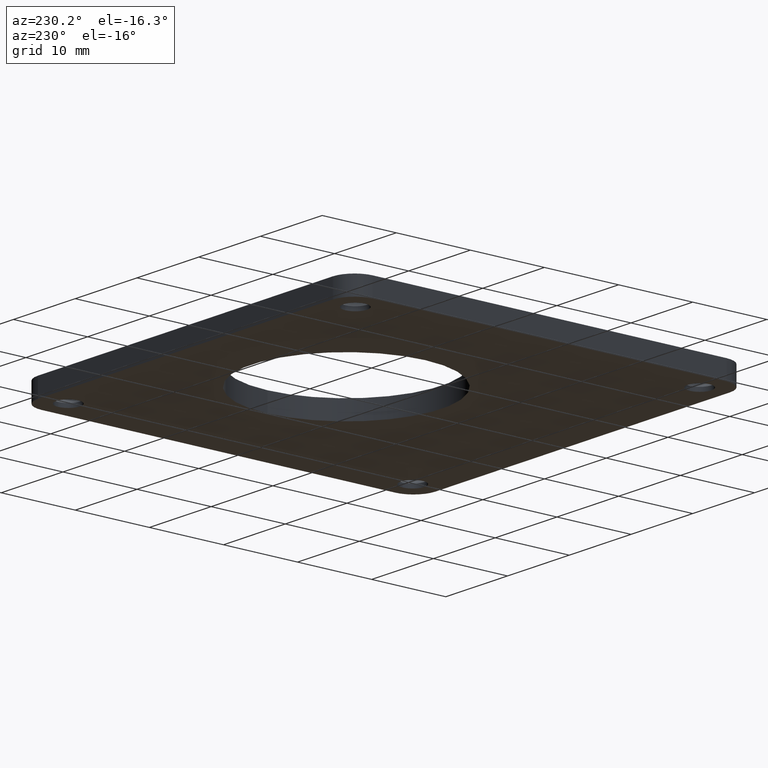
[diagram: clean part render]
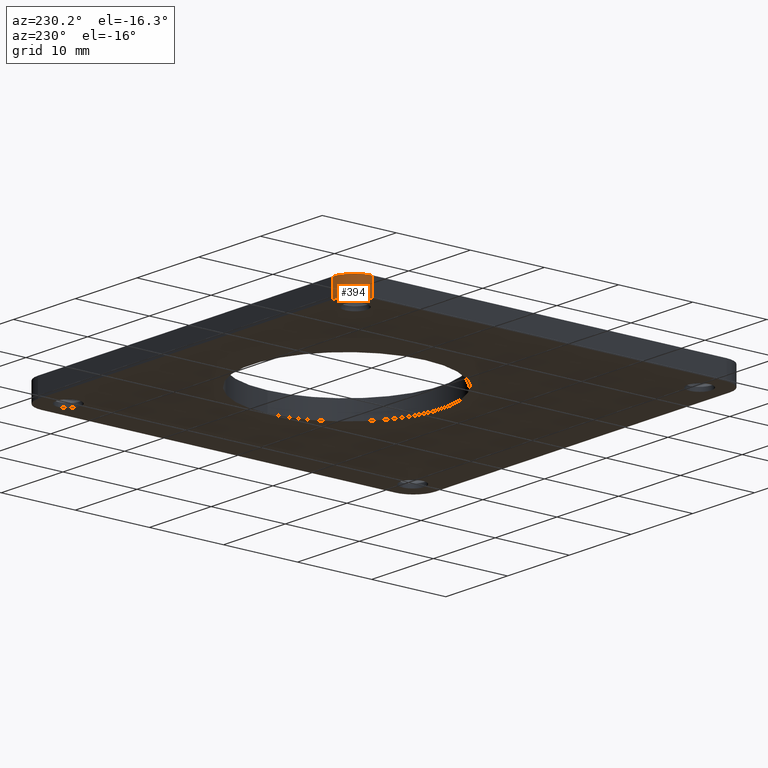
[diagram: same view with one face highlighted and labeled with its STEP entity id]
A machine part, auxiliary view. The second image highlights one B-rep face of the part: STEP entity #394.
In plain terms, the highlighted cylindrical surface (edge-blend (fillet) strip) has radius 2.921 mm, axis along (-0, -0, -1).
Its self-contained STEP definition (entity closure, byte-faithful):
#8 = ORIENTED_EDGE ( 'NONE', *, *, #403, .F. ) ;
#42 = EDGE_CURVE ( 'NONE', #787, #490, #693, .T. ) ;
#90 = CARTESIAN_POINT ( 'NONE',  ( -0.9399999999999999500, 1.055000000000000200, 0.04921259842519685300 ) ) ;
#91 = CARTESIAN_POINT ( 'NONE',  ( -0.9399999999999999500, 1.055000000000000200, 0.04921259842519685300 ) ) ;
#166 = DIRECTION ( 'NONE',  ( 0.0000000000000000000, 0.0000000000000000000, 1.000000000000000000 ) ) ;
#170 = CARTESIAN_POINT ( 'NONE',  ( -0.9399999999999999500, 0.9399999999999999500, -0.04921259842519685300 ) ) ;
#185 = VECTOR ( 'NONE', #820, 39.37007874015748100 ) ;
#210 = LINE ( 'NONE', #91, #185 ) ;
#259 = VERTEX_POINT ( 'NONE', #657 ) ;
#272 = VECTOR ( 'NONE', #381, 39.37007874015748100 ) ;
#315 = CARTESIAN_POINT ( 'NONE',  ( -0.9399999999999999500, 0.9399999999999999500, 0.04921259842519685300 ) ) ;
#318 = EDGE_CURVE ( 'NONE', #787, #464, #210, .T. ) ;
#363 = ORIENTED_EDGE ( 'NONE', *, *, #42, .F. ) ;
#368 = CYLINDRICAL_SURFACE ( 'NONE', #408, 0.1149999999999998700 ) ;
#381 = DIRECTION ( 'NONE',  ( -0.0000000000000000000, -0.0000000000000000000, -1.000000000000000000 ) ) ;
#394 = ADVANCED_FACE ( 'NONE', ( #762 ), #368, .T. ) ;
#403 = EDGE_CURVE ( 'NONE', #490, #259, #745, .T. ) ;
#408 = AXIS2_PLACEMENT_3D ( 'NONE', #315, #485, #630 ) ;
#414 = DIRECTION ( 'NONE',  ( 0.0000000000000000000, 0.0000000000000000000, 1.000000000000000000 ) ) ;
#418 = CIRCLE ( 'NONE', #474, 0.1149999999999998700 ) ;
#427 = DIRECTION ( 'NONE',  ( -1.000000000000000000, 0.0000000000000000000, 0.0000000000000000000 ) ) ;
#445 = CARTESIAN_POINT ( 'NONE',  ( -1.054999999999999500, 0.9399999999999999500, 0.04921259842519685300 ) ) ;
#450 = DIRECTION ( 'NONE',  ( -1.000000000000000000, 0.0000000000000000000, 0.0000000000000000000 ) ) ;
#464 = VERTEX_POINT ( 'NONE', #504 ) ;
#474 = AXIS2_PLACEMENT_3D ( 'NONE', #170, #166, #450 ) ;
#485 = DIRECTION ( 'NONE',  ( -0.0000000000000000000, -0.0000000000000000000, -1.000000000000000000 ) ) ;
#486 = CARTESIAN_POINT ( 'NONE',  ( -0.9399999999999999500, 0.9399999999999999500, 0.04921259842519685300 ) ) ;
#490 = VERTEX_POINT ( 'NONE', #445 ) ;
#504 = CARTESIAN_POINT ( 'NONE',  ( -0.9399999999999999500, 1.055000000000000200, -0.04921259842519685300 ) ) ;
#515 = CARTESIAN_POINT ( 'NONE',  ( -1.054999999999999500, 0.9399999999999999500, 0.04921259842519685300 ) ) ;
#590 = AXIS2_PLACEMENT_3D ( 'NONE', #486, #414, #427 ) ;
#630 = DIRECTION ( 'NONE',  ( -1.000000000000000000, 0.0000000000000000000, 0.0000000000000000000 ) ) ;
#635 = ORIENTED_EDGE ( 'NONE', *, *, #791, .T. ) ;
#657 = CARTESIAN_POINT ( 'NONE',  ( -1.054999999999999500, 0.9399999999999999500, -0.04921259842519685300 ) ) ;
#668 = ORIENTED_EDGE ( 'NONE', *, *, #318, .T. ) ;
#693 = CIRCLE ( 'NONE', #590, 0.1149999999999998700 ) ;
#745 = LINE ( 'NONE', #515, #272 ) ;
#762 = FACE_OUTER_BOUND ( 'NONE', #790, .T. ) ;
#787 = VERTEX_POINT ( 'NONE', #90 ) ;
#790 = EDGE_LOOP ( 'NONE', ( #635, #8, #363, #668 ) ) ;
#791 = EDGE_CURVE ( 'NONE', #464, #259, #418, .T. ) ;
#820 = DIRECTION ( 'NONE',  ( -0.0000000000000000000, -0.0000000000000000000, -1.000000000000000000 ) ) ;